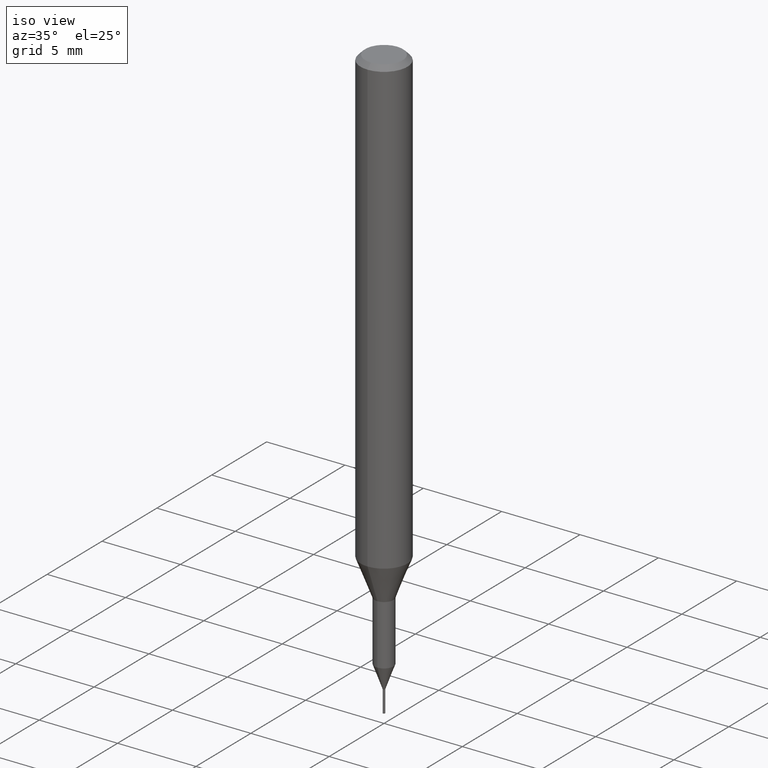
[diagram: clean part render]
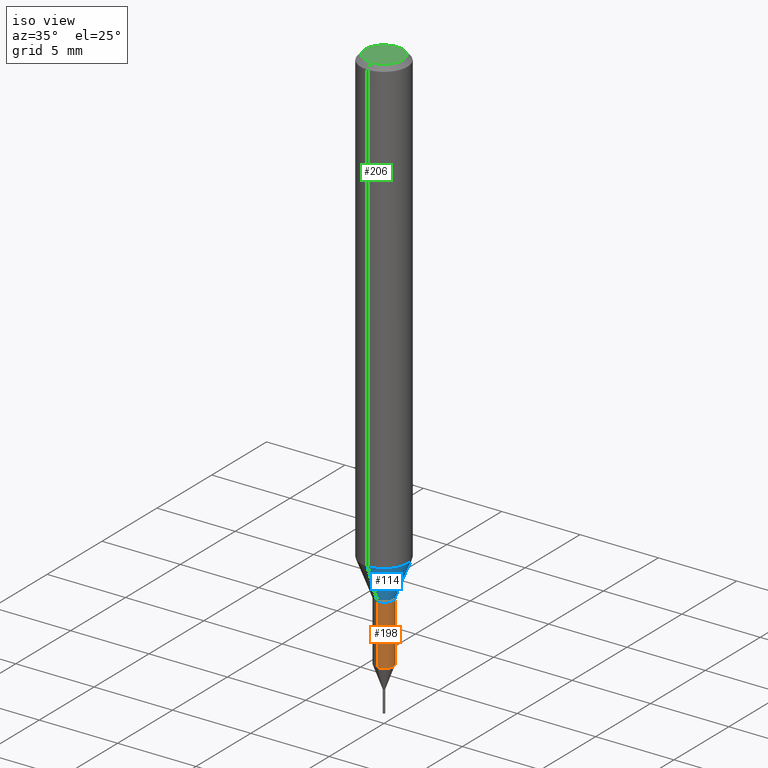
[diagram: same view with three faces highlighted in distinct colors, each labeled with its STEP entity id]
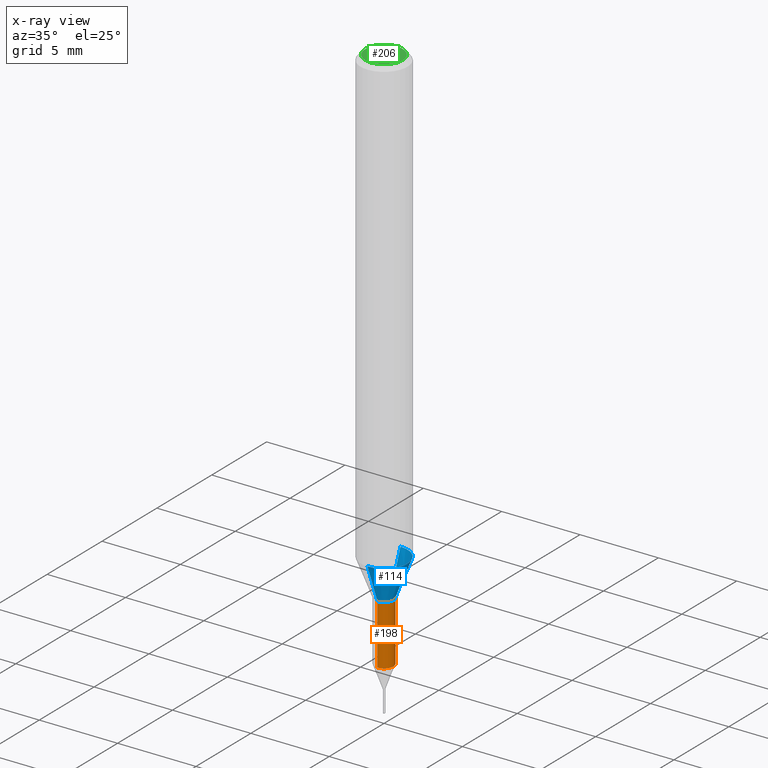
[diagram: x-ray of the same camera — body ghosted, the three highlighted faces saturated]
A machine part, iso view with three faces highlighted in distinct colors.
The next image is the same camera in x-ray (body ghosted, the three faces saturated) — at least one of them is partly hidden behind the body in this view.
Their STEP definitions:

[orange] entity #198 — the highlighted cylindrical surface (edge-blend (fillet) strip) has radius 0.5999 mm, axis along (-0, -0, 1).
#168=VERTEX_POINT('',#353);
#180=EDGE_CURVE('',#262,#254,#365,.T.);
#182=VERTEX_POINT('',#367);
#198=ADVANCED_FACE('',(#384),#385,.T.);
#222=EDGE_CURVE('',#168,#262,#412,.T.);
#226=EDGE_CURVE('',#168,#182,#417,.T.);
#238=EDGE_CURVE('',#254,#182,#430,.T.);
#254=VERTEX_POINT('',#448);
#262=VERTEX_POINT('',#459);
#353=CARTESIAN_POINT('',(0.0,0.59995,-31.3));
#365=CIRCLE('',#584,0.59995);
#367=CARTESIAN_POINT('',(7.34702581975735E-017,-0.59995,-31.3));
#384=FACE_OUTER_BOUND('',#608,.T.);
#385=CYLINDRICAL_SURFACE('',#609,0.59995);
#412=LINE('',#640,#641);
#417=CIRCLE('',#647,0.59995);
#430=LINE('',#663,#664);
#448=CARTESIAN_POINT('',(7.34702581975735E-017,-0.59995,-35.13));
#459=CARTESIAN_POINT('',(0.0,0.59995,-35.13));
#584=AXIS2_PLACEMENT_3D('',#805,#806,#807);
#608=EDGE_LOOP('',(#826,#827,#828,#829));
#609=AXIS2_PLACEMENT_3D('',#830,#831,#832);
#640=CARTESIAN_POINT('',(-7.34702581975735E-017,0.59995,-33.215));
#641=VECTOR('',#864,1.0);
#647=AXIS2_PLACEMENT_3D('',#873,#874,#875);
#663=CARTESIAN_POINT('',(7.34702581975735E-017,-0.59995,-33.215));
#664=VECTOR('',#889,1.0);
#805=CARTESIAN_POINT('',(0.0,0.0,-35.13));
#806=DIRECTION('',(0.0,0.0,-1.0));
#807=DIRECTION('',(0.0,1.0,0.0));
#826=ORIENTED_EDGE('',*,*,#222,.F.);
#827=ORIENTED_EDGE('',*,*,#226,.T.);
#828=ORIENTED_EDGE('',*,*,#238,.F.);
#829=ORIENTED_EDGE('',*,*,#180,.F.);
#830=CARTESIAN_POINT('',(0.0,0.0,-33.215));
#831=DIRECTION('',(-0.0,-0.0,1.0));
#832=DIRECTION('',(0.0,1.0,0.0));
#864=DIRECTION('',(0.0,0.0,-1.0));
#873=CARTESIAN_POINT('',(0.0,0.0,-31.3));
#874=DIRECTION('',(0.0,0.0,-1.0));
#875=DIRECTION('',(0.0,1.0,0.0));
#889=DIRECTION('',(-0.0,-0.0,1.0));

[blue] entity #114 — the highlighted conical surface has half-angle 20.997 deg.
#114=ADVANCED_FACE('',(#291),#292,.T.);
#116=EDGE_CURVE('',#220,#246,#294,.T.);
#118=EDGE_CURVE('',#236,#178,#296,.T.);
#132=EDGE_CURVE('',#220,#236,#310,.T.);
#176=EDGE_CURVE('',#178,#246,#361,.T.);
#178=VERTEX_POINT('',#363);
#220=VERTEX_POINT('',#410);
#236=VERTEX_POINT('',#428);
#246=VERTEX_POINT('',#438);
#291=FACE_OUTER_BOUND('',#481,.T.);
#292=CONICAL_SURFACE('',#482,1.05,0.366459241971866);
#294=CIRCLE('',#485,1.5);
#296=CIRCLE('',#488,0.6);
#310=LINE('',#510,#511);
#361=LINE('',#578,#579);
#363=CARTESIAN_POINT('',(7.34763812293426E-017,-0.6,-31.3));
#410=CARTESIAN_POINT('',(0.0,1.5,-28.955));
#428=CARTESIAN_POINT('',(0.0,0.6,-31.3));
#438=CARTESIAN_POINT('',(1.83690953073357E-016,-1.5,-28.955));
#481=EDGE_LOOP('',(#709,#710,#711,#712));
#482=AXIS2_PLACEMENT_3D('',#713,#714,#715);
#485=AXIS2_PLACEMENT_3D('',#716,#717,#718);
#488=AXIS2_PLACEMENT_3D('',#719,#720,#721);
#510=CARTESIAN_POINT('',(-1.2858366715135E-016,1.05,-30.1275));
#511=VECTOR('',#732,1.0);
#578=CARTESIAN_POINT('',(1.2858366715135E-016,-1.05,-30.1275));
#579=VECTOR('',#804,1.0);
#709=ORIENTED_EDGE('',*,*,#132,.F.);
#710=ORIENTED_EDGE('',*,*,#116,.T.);
#711=ORIENTED_EDGE('',*,*,#176,.F.);
#712=ORIENTED_EDGE('',*,*,#118,.F.);
#713=CARTESIAN_POINT('',(0.0,0.0,-30.1275));
#714=DIRECTION('',(-0.0,-0.0,1.0));
#715=DIRECTION('',(0.0,1.0,0.0));
#716=CARTESIAN_POINT('',(0.0,0.0,-28.955));
#717=DIRECTION('',(0.0,0.0,-1.0));
#718=DIRECTION('',(0.0,1.0,0.0));
#719=CARTESIAN_POINT('',(0.0,0.0,-31.3));
#720=DIRECTION('',(0.0,0.0,-1.0));
#721=DIRECTION('',(0.0,1.0,0.0));
#732=DIRECTION('',(4.38791184365088E-017,-0.358312026550805,-0.93360189140182));
#804=DIRECTION('',(4.38791184365088E-017,-0.358312026550805,0.93360189140182));

[green] entity #206 — the highlighted planar face has unit normal (-0, 0, 1).
#136=EDGE_CURVE('',#172,#216,#314,.T.);
#172=VERTEX_POINT('',#357);
#206=ADVANCED_FACE('',(#393),#394,.T.);
#216=VERTEX_POINT('',#406);
#230=EDGE_CURVE('',#216,#172,#421,.T.);
#314=CIRCLE('',#518,1.2);
#357=CARTESIAN_POINT('',(1.46952762458685E-016,-1.2,0.0));
#393=FACE_OUTER_BOUND('',#618,.T.);
#394=PLANE('',#619);
#406=CARTESIAN_POINT('',(0.0,1.2,0.0));
#421=CIRCLE('',#652,1.2);
#518=AXIS2_PLACEMENT_3D('',#734,#735,#736);
#618=EDGE_LOOP('',(#837,#838));
#619=AXIS2_PLACEMENT_3D('',#839,#840,#841);
#652=AXIS2_PLACEMENT_3D('',#876,#877,#878);
#734=CARTESIAN_POINT('',(0.0,0.0,0.0));
#735=DIRECTION('',(0.0,0.0,-1.0));
#736=DIRECTION('',(0.0,1.0,0.0));
#837=ORIENTED_EDGE('',*,*,#230,.F.);
#838=ORIENTED_EDGE('',*,*,#136,.F.);
#839=CARTESIAN_POINT('',(0.0,0.6,0.0));
#840=DIRECTION('',(-0.0,0.0,1.0));
#841=DIRECTION('',(0.0,-1.0,0.0));
#876=CARTESIAN_POINT('',(0.0,0.0,0.0));
#877=DIRECTION('',(0.0,0.0,-1.0));
#878=DIRECTION('',(0.0,1.0,0.0));